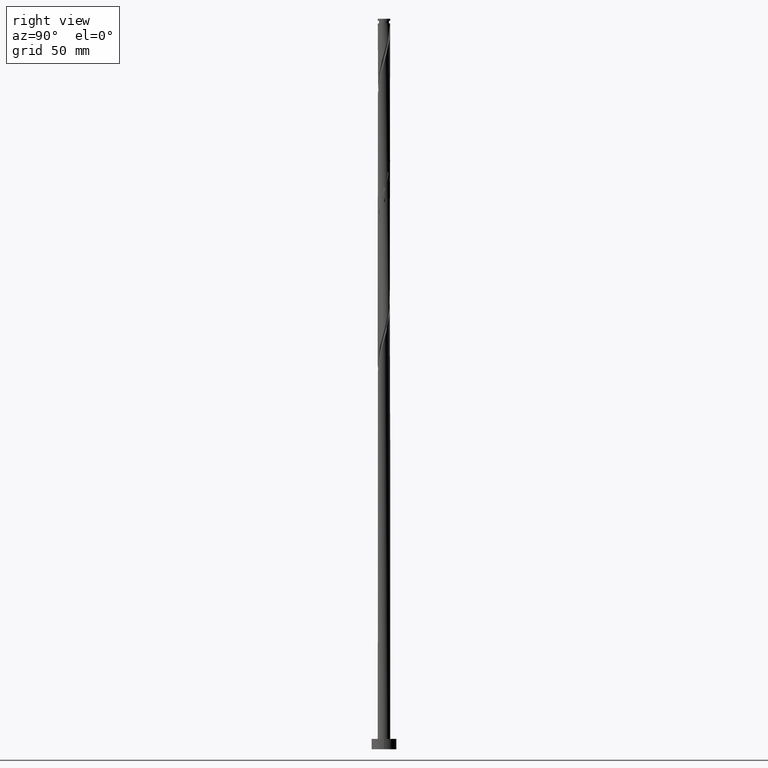
[diagram: clean part render]
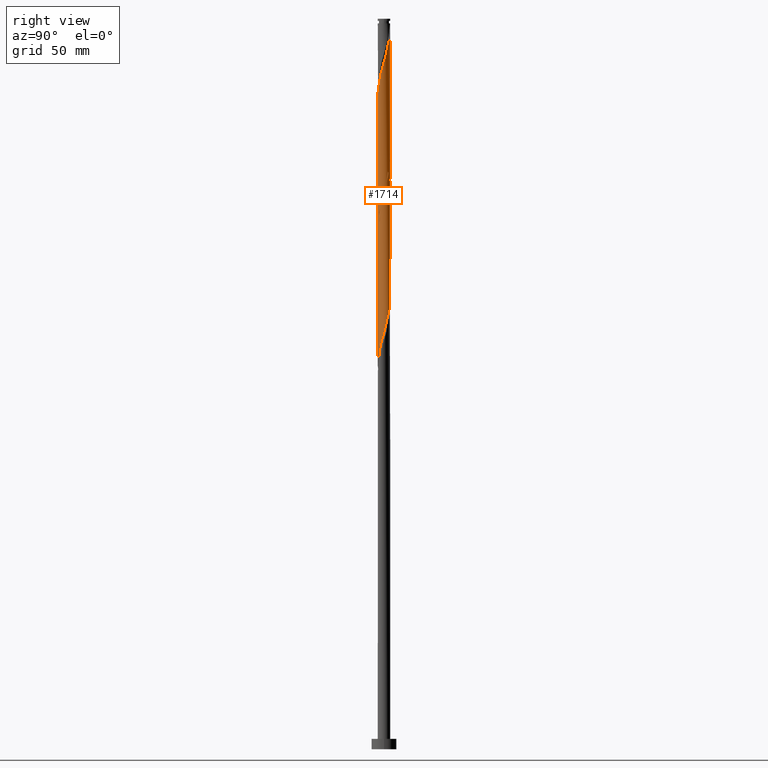
[diagram: same view with one face highlighted and labeled with its STEP entity id]
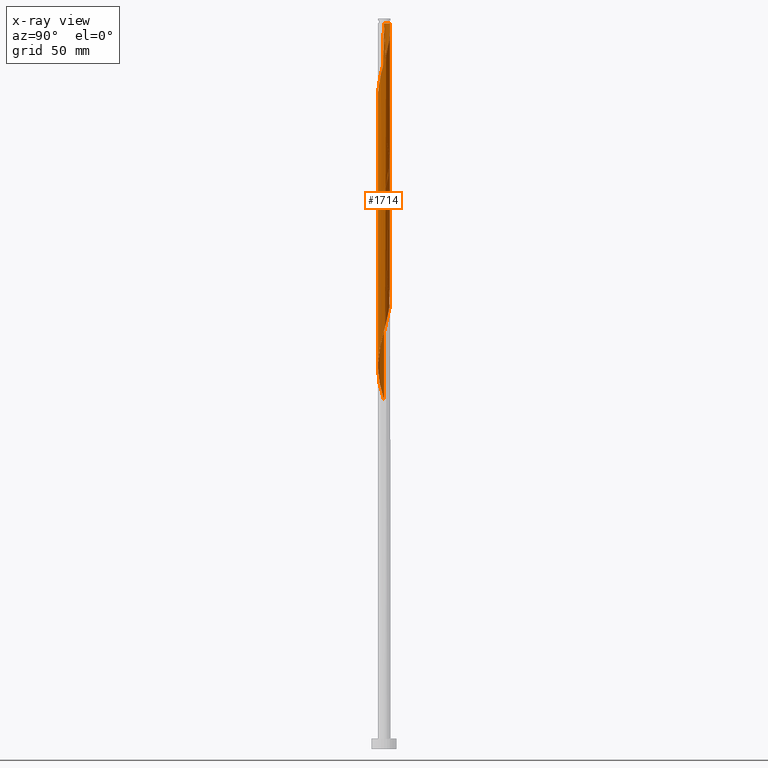
[diagram: x-ray of the same camera — body ghosted, the highlighted face saturated]
A machine part, right view. The second image highlights one B-rep face of the part: STEP entity #1714.
The next image is the same camera in x-ray: the body ghosted, the highlighted face saturated — about 0% of this face is hidden behind the body in this view.
In plain terms, the highlighted cylindrical surface (bore or boss wall) has radius 3 mm, axis along (-0, -0, -1).
Its self-contained STEP definition (entity closure, byte-faithful):
#13 = CARTESIAN_POINT ( 'NONE',  ( -0.9582386936374932551, -2.860279830445438431, 309.8706322492016625 ) ) ;
#22 = CARTESIAN_POINT ( 'NONE',  ( -0.6504259784947287182, -2.928642355512055317, 310.9817433603126346 ) ) ;
#35 = CARTESIAN_POINT ( 'NONE',  ( 2.456461689585825781, 1.750776419202128231, 336.5372989158683481 ) ) ;
#45 = CARTESIAN_POINT ( 'NONE',  ( 0.5969924622639743994, -2.940000000000003499, 315.4261878047571486 ) ) ;
#47 = CARTESIAN_POINT ( 'NONE',  ( -2.211065689225170772, -2.027606598413810080, 242.0928544714238626 ) ) ;
#53 = CARTESIAN_POINT ( 'NONE',  ( 2.744447700168709314, -1.251970017003503299, 325.4261878047573191 ) ) ;
#63 = CARTESIAN_POINT ( 'NONE',  ( -2.766788993523057183, 1.201790650553046902, 229.8706322492016056 ) ) ;
#75 = CARTESIAN_POINT ( 'NONE',  ( -1.484415317302709258, -2.626010904050884331, 178.7595211380904914 ) ) ;
#87 = CARTESIAN_POINT ( 'NONE',  ( 2.956194341916737578, -0.6002808636434366907, 198.7595211380904914 ) ) ;
#95 = CARTESIAN_POINT ( 'NONE',  ( 2.584311715169901102, 1.523592123514560415, 206.5372989158682913 ) ) ;
#103 = DIRECTION ( 'NONE',  ( -0.000000000000000000, -0.000000000000000000, -1.000000000000000000 ) ) ;
#104 = CARTESIAN_POINT ( 'NONE',  ( 2.861491667719897158, -0.9010357570982435726, 197.6484100269793771 ) ) ;
#110 = CARTESIAN_POINT ( 'NONE',  ( -1.245111594254570964, 2.729413328510879921, 222.0928544714238342 ) ) ;
#118 = CARTESIAN_POINT ( 'NONE',  ( -1.245111594254570964, 2.729413328510879921, 288.7595211380905766 ) ) ;
#133 = CARTESIAN_POINT ( 'NONE',  ( -3.000000000000000444, -3.886588009372903973E-15, 167.5516310482786935 ) ) ;
#135 = VERTEX_POINT ( 'NONE', #1149 ) ;
#153 = DIRECTION ( 'NONE',  ( -1.000000000000000000, 0.000000000000000000, 0.000000000000000000 ) ) ;
#162 = CARTESIAN_POINT ( 'NONE',  ( 2.211065689225171216, 2.027606598413810080, 275.4261878047572054 ) ) ;
#170 = CARTESIAN_POINT ( 'NONE',  ( 0.5969924622639751766, 2.939999999999999947, 282.0928544714238910 ) ) ;
#178 = CARTESIAN_POINT ( 'NONE',  ( 2.744447700168706206, 1.251970017003499747, 272.0928544714237205 ) ) ;
#182 = CARTESIAN_POINT ( 'NONE',  ( 2.247618455994262021, -1.987010638188425604, 259.8706322492016625 ) ) ;
#187 = CARTESIAN_POINT ( 'NONE',  ( 2.844610918258237309, 0.9529893618115730103, 270.9817433603126915 ) ) ;
#190 = CARTESIAN_POINT ( 'NONE',  ( -3.016399812174360040, -0.02746407747455771250, 234.3150766936460343 ) ) ;
#197 = CARTESIAN_POINT ( 'NONE',  ( 1.997955648279248431, 2.259998966801997078, 276.5372989158683481 ) ) ;
#206 = DIRECTION ( 'NONE',  ( -0.000000000000000000, -0.000000000000000000, -1.000000000000000000 ) ) ;
#210 = CARTESIAN_POINT ( 'NONE',  ( 1.245111594254570742, -2.729413328510879921, 188.7595211380905482 ) ) ;
#221 = CARTESIAN_POINT ( 'NONE',  ( 0.9059989139450655982, 2.877253563794370805, 214.3150766936460627 ) ) ;
#231 = CARTESIAN_POINT ( 'NONE',  ( -1.997955648279248209, -2.259998966801997522, 176.5372989158682913 ) ) ;
#240 = CARTESIAN_POINT ( 'NONE',  ( 1.997955648279248431, 2.259998966801997078, 209.8706322492015488 ) ) ;
#251 = CARTESIAN_POINT ( 'NONE',  ( 2.424175730171095111, 1.795214230025620639, 207.6484100269794340 ) ) ;
#260 = CARTESIAN_POINT ( 'NONE',  ( -2.247618455994262021, 1.987010638188424938, 293.2039655825349769 ) ) ;
#277 = AXIS2_PLACEMENT_3D ( 'NONE', #1459, #1779, #153 ) ;
#308 = CARTESIAN_POINT ( 'NONE',  ( 1.484415317302709481, 2.626010904050884331, 278.7595211380904630 ) ) ;
#318 = CARTESIAN_POINT ( 'NONE',  ( -0.02731362638454053193, -2.999875658392152200, 313.2039655825348632 ) ) ;
#320 = CARTESIAN_POINT ( 'NONE',  ( 1.531984494871650782, -2.598546826576326740, 256.5372989158682913 ) ) ;
#326 = CARTESIAN_POINT ( 'NONE',  ( 0.9582386936374936992, 2.860279830445437543, 343.2039655825349769 ) ) ;
#328 = CARTESIAN_POINT ( 'NONE',  ( -0.5969924622639747325, -2.939999999999999947, 248.7595211380904914 ) ) ;
#334 = CARTESIAN_POINT ( 'NONE',  ( -2.456461689585824892, -1.750776419202128897, 303.2039655825349200 ) ) ;
#338 = CARTESIAN_POINT ( 'NONE',  ( -1.997955648279248209, -2.259998966801997522, 243.2039655825348916 ) ) ;
#343 = CARTESIAN_POINT ( 'NONE',  ( -1.245111594254573184, -2.729413328510883030, 308.7595211380904061 ) ) ;
#345 = CARTESIAN_POINT ( 'NONE',  ( -2.956194341916737578, 0.6002808636434364686, 232.0928544714238058 ) ) ;
#352 = CARTESIAN_POINT ( 'NONE',  ( -2.424175730171093779, -1.795214230025622415, 174.3150766936460627 ) ) ;
#360 = CARTESIAN_POINT ( 'NONE',  ( -3.000000000000000444, 0.000000000000000000, 351.0000000000000000 ) ) ;
#371 = CARTESIAN_POINT ( 'NONE',  ( 0.3426132633519650139, 2.997004880578674424, 345.4261878047571486 ) ) ;
#373 = CARTESIAN_POINT ( 'NONE',  ( 0.9582386936374897024, -2.860279830445433991, 187.6484100269793487 ) ) ;
#384 = CARTESIAN_POINT ( 'NONE',  ( -0.6504259784947266088, 2.928642355512052653, 219.8706322492016625 ) ) ;
#392 = CARTESIAN_POINT ( 'NONE',  ( -2.584311715169901102, -1.523592123514561303, 173.2039655825349485 ) ) ;
#402 = CARTESIAN_POINT ( 'NONE',  ( -2.861491667719897158, 0.9010357570982420183, 297.6484100269793771 ) ) ;
#411 = CARTESIAN_POINT ( 'NONE',  ( -0.9582386936374900355, 2.860279830445433547, 287.6484100269793203 ) ) ;
#429 = CARTESIAN_POINT ( 'NONE',  ( 3.000000000000000444, 2.630921114037042974E-15, 267.5516310482786935 ) ) ;
#438 = LINE ( 'NONE', #1211, #1627 ) ;
#445 =( BOUNDED_CURVE ( )  B_SPLINE_CURVE ( 2, ( #569, #542, #1128, #1156, #402, #1004, #987, #1566, #260, #841, #1422, #1135, #118, #411, #1578, #996, #1062, #1472, #170, #1646, #900, #308, #587, #197, #162, #1352, #743, #178, #187, #1510, #627, #618, #925 ),
 .UNSPECIFIED., .F., .T. ) 
 B_SPLINE_CURVE_WITH_KNOTS ( ( 3, 2, 2, 2, 2, 2, 2, 2, 2, 2, 2, 2, 2, 2, 2, 2, 3 ),
 ( 0.4295286012773113504, 0.4333333333333333481, 0.4416666666666666519, 0.4500000000000000111, 0.4583333333333333148, 0.4666666666666666741, 0.4749999999999999778, 0.4833333333333333370, 0.4916666666666666408, 0.5000000000000000000, 0.5083333333333333037, 0.5166666666666667185, 0.5250000000000000222, 0.5333333333333333259, 0.5416666666666666297, 0.5500000000000000444, 0.5545286012773115170 ),
 .UNSPECIFIED. ) 
 CURVE ( )  GEOMETRIC_REPRESENTATION_ITEM ( )  RATIONAL_B_SPLINE_CURVE ( ( 0.9066196499552384713, 0.9068171577856511956, 0.9090909090909501389, 0.9041108139711984126, 0.9090909090909501389, 0.9041108139711984126, 0.9090909090909501389, 0.9041108139711984126, 0.9090909090909501389, 0.9041108139711984126, 0.9090909090909501389, 0.9041108139711984126, 0.9090909090909501389, 0.9041108139711984126, 0.9090909090909501389, 0.9041108139711984126, 0.9090909090909501389, 0.9041108139711984126, 0.9090909090909501389, 0.9041108139711984126, 0.9090909090909501389, 0.9041108139711984126, 0.9090909090909501389, 0.9041108139711984126, 0.9090909090909501389, 0.9041108139711984126, 0.9090909090909501389, 0.9041108139711984126, 0.9090909090909501389, 0.9041108139711984126, 0.9090909090909501389, 0.9063845652764972449, 0.9066196499552384713 ) ) 
 REPRESENTATION_ITEM ( '' )  );
#446 = CARTESIAN_POINT ( 'NONE',  ( 1.997955648279249319, -2.259998966802001519, 320.9817433603127483 ) ) ;
#457 = CARTESIAN_POINT ( 'NONE',  ( 2.584311715169902435, -1.523592123514564856, 324.3150766936460627 ) ) ;
#466 = EDGE_CURVE ( 'NONE', #135, #1829, #438, .T. ) ;
#467 = CARTESIAN_POINT ( 'NONE',  ( -2.986297077045553916, -0.2864083930844382730, 297.6484100269793771 ) ) ;
#470 = CARTESIAN_POINT ( 'NONE',  ( 1.785379858637177186, -2.410895841875524859, 257.6484100269794340 ) ) ;
#477 = CARTESIAN_POINT ( 'NONE',  ( 2.247618455994266462, 1.987010638188425604, 337.6484100269793771 ) ) ;
#480 = CARTESIAN_POINT ( 'NONE',  ( -2.980586974261063560, -0.3407363920471035978, 235.4261878047571770 ) ) ;
#494 = CARTESIAN_POINT ( 'NONE',  ( -3.000000000000000444, -1.943294004686451986E-15, 300.8849643816120079 ) ) ;
#498 = CYLINDRICAL_SURFACE ( 'NONE', #277, 3.000000000000000444 ) ;
#504 = CARTESIAN_POINT ( 'NONE',  ( 1.531984494871650782, -2.598546826576326740, 189.8706322492016056 ) ) ;
#512 = ORIENTED_EDGE ( 'NONE', *, *, #466, .T. ) ;
#515 = CARTESIAN_POINT ( 'NONE',  ( -2.844610918258236421, -0.9529893618115747866, 170.9817433603127199 ) ) ;
#523 = CARTESIAN_POINT ( 'NONE',  ( -2.611625341554438595, 1.476283534877586678, 228.7595211380904630 ) ) ;
#534 = CARTESIAN_POINT ( 'NONE',  ( 2.980586974261063560, 0.3407363920471032648, 202.0928544714238626 ) ) ;
#539 = VERTEX_POINT ( 'NONE', #1075 ) ;
#542 = CARTESIAN_POINT ( 'NONE',  ( -3.000000000000000444, 0.1435319978602463409, 300.3764158560479700 ) ) ;
#543 = VERTEX_POINT ( 'NONE', #494 ) ;
#569 = CARTESIAN_POINT ( 'NONE',  ( -3.000000000000000444, -1.943294004686451986E-15, 300.8849643816120079 ) ) ;
#586 = DIRECTION ( 'NONE',  ( -0.000000000000000000, -0.000000000000000000, -1.000000000000000000 ) ) ;
#587 = CARTESIAN_POINT ( 'NONE',  ( 1.741185482790979844, 2.443004935426440039, 277.6484100269793771 ) ) ;
#597 = CARTESIAN_POINT ( 'NONE',  ( 3.016399812174364481, -0.02746407747456011336, 329.8706322492016625 ) ) ;
#608 = CARTESIAN_POINT ( 'NONE',  ( 1.785379858637181627, 2.410895841875526191, 339.8706322492015488 ) ) ;
#610 = CARTESIAN_POINT ( 'NONE',  ( 2.999999999999999556, -0.1435319978602529745, 267.0430825227145988 ) ) ;
#618 = CARTESIAN_POINT ( 'NONE',  ( 3.000000000000000888, 0.1709212123392938876, 268.1572223576632155 ) ) ;
#620 = CARTESIAN_POINT ( 'NONE',  ( -0.9059989139450639328, -2.877253563794371249, 247.6484100269794340 ) ) ;
#627 = CARTESIAN_POINT ( 'NONE',  ( 2.980586974261063560, 0.3407363920471032648, 268.7595211380904630 ) ) ;
#629 = CARTESIAN_POINT ( 'NONE',  ( 2.038775222402703591, -2.223244857174722089, 258.7595211380904630 ) ) ;
#631 = EDGE_CURVE ( 'NONE', #1081, #1829, #1238, .T. ) ;
#638 = CARTESIAN_POINT ( 'NONE',  ( -0.5969924622640608858, 2.940000000000868141, 348.7595211380905198 ) ) ;
#651 = CARTESIAN_POINT ( 'NONE',  ( -2.744447700168706206, -1.251970017003500413, 172.0928544714237773 ) ) ;
#659 = ORIENTED_EDGE ( 'NONE', *, *, #1285, .F. ) ;
#662 = CARTESIAN_POINT ( 'NONE',  ( 2.456461689585818675, -1.750776419202128897, 194.3150766936460343 ) ) ;
#671 = VECTOR ( 'NONE', #103, 1000.000000000000000 ) ;
#679 = CARTESIAN_POINT ( 'NONE',  ( 1.484415317302709481, 2.626010904050884331, 212.0928544714238342 ) ) ;
#684 = CARTESIAN_POINT ( 'NONE',  ( 3.000000000000000444, 3.673940397442060361E-16, 348.7595211380905198 ) ) ;
#688 = ORIENTED_EDGE ( 'NONE', *, *, #1391, .F. ) ;
#690 = CARTESIAN_POINT ( 'NONE',  ( 1.785379858637177186, -2.410895841875524859, 190.9817433603126915 ) ) ;
#743 = CARTESIAN_POINT ( 'NONE',  ( 2.584311715169901102, 1.523592123514560415, 273.2039655825350337 ) ) ;
#753 = CARTESIAN_POINT ( 'NONE',  ( 1.195207115623886374, -2.751632233922632675, 317.6484100269793203 ) ) ;
#756 = CARTESIAN_POINT ( 'NONE',  ( -1.741185482790978734, -2.443004935426440039, 244.3150766936460343 ) ) ;
#760 = VECTOR ( 'NONE', #586, 1000.000000000000000 ) ;
#764 = CARTESIAN_POINT ( 'NONE',  ( 2.424175730171096443, -1.795214230025626634, 323.2039655825349200 ) ) ;
#767 = CARTESIAN_POINT ( 'NONE',  ( 2.611625341554438595, -1.476283534877586900, 262.0928544714238342 ) ) ;
#773 = CARTESIAN_POINT ( 'NONE',  ( 1.484415317302710591, -2.626010904050888772, 318.7595211380904630 ) ) ;
#776 = CARTESIAN_POINT ( 'NONE',  ( -2.986297077045549475, 0.2864083930844394943, 233.2039655825349485 ) ) ;
#782 = CARTESIAN_POINT ( 'NONE',  ( -2.861491667719901599, -0.9010357570982417963, 299.8706322492015488 ) ) ;
#785 = CARTESIAN_POINT ( 'NONE',  ( -2.584311715169901102, -1.523592123514561303, 239.8706322492016341 ) ) ;
#798 = CARTESIAN_POINT ( 'NONE',  ( 2.211065689225171216, 2.027606598413810080, 208.7595211380904914 ) ) ;
#804 = LINE ( 'NONE', #1181, #760 ) ;
#809 = CARTESIAN_POINT ( 'NONE',  ( -2.980586974261063560, -0.3407363920471035978, 168.7595211380905198 ) ) ;
#825 = CARTESIAN_POINT ( 'NONE',  ( 0.02731362638454095174, 2.999875658392152200, 346.5372989158682344 ) ) ;
#826 = CARTESIAN_POINT ( 'NONE',  ( 0.6504259784947253875, -2.928642355512052653, 186.5372989158683197 ) ) ;
#835 = CARTESIAN_POINT ( 'NONE',  ( -0.9059989139450639328, -2.877253563794371249, 180.9817433603127199 ) ) ;
#841 = CARTESIAN_POINT ( 'NONE',  ( -2.038775222402704035, 2.223244857174722089, 292.0928544714238342 ) ) ;
#878 = FACE_OUTER_BOUND ( 'NONE', #1360, .T. ) ;
#888 = VERTEX_POINT ( 'NONE', #1879 ) ;
#889 = CARTESIAN_POINT ( 'NONE',  ( 2.980586974261067557, -0.3407363920471052632, 328.7595211380904061 ) ) ;
#891 = CARTESIAN_POINT ( 'NONE',  ( 0.6504259784947253875, -2.928642355512052653, 253.2039655825350053 ) ) ;
#900 = CARTESIAN_POINT ( 'NONE',  ( 1.195207115623887928, 2.751632233922627346, 279.8706322492015488 ) ) ;
#903 = CARTESIAN_POINT ( 'NONE',  ( 0.9582386936374897024, -2.860279830445433991, 254.3150766936460627 ) ) ;
#907 = CARTESIAN_POINT ( 'NONE',  ( 0.6504259784947304945, 2.928642355512055317, 344.3150766936459490 ) ) ;
#909 = CARTESIAN_POINT ( 'NONE',  ( -2.424175730171093779, -1.795214230025622415, 240.9817433603126915 ) ) ;
#916 = CARTESIAN_POINT ( 'NONE',  ( -2.247618455994265574, -1.987010638188426048, 304.3150766936460627 ) ) ;
#925 = CARTESIAN_POINT ( 'NONE',  ( 3.000000000000000444, 2.630921114037042580E-15, 267.5516310482786935 ) ) ;
#927 = CARTESIAN_POINT ( 'NONE',  ( 2.861491667719897158, -0.9010357570982435726, 264.3150766936461196 ) ) ;
#937 = CARTESIAN_POINT ( 'NONE',  ( 2.986297077045549475, -0.2864083930844405490, 199.8706322492016341 ) ) ;
#959 = CARTESIAN_POINT ( 'NONE',  ( 0.5969924622639751766, 2.939999999999999947, 215.4261878047572054 ) ) ;
#965 = ORIENTED_EDGE ( 'NONE', *, *, #1163, .F. ) ;
#968 = CARTESIAN_POINT ( 'NONE',  ( 3.016399812174360040, 0.02746407747455591186, 200.9817433603127199 ) ) ;
#979 = CARTESIAN_POINT ( 'NONE',  ( -0.02731362638453866884, 2.999875658392149536, 217.6484100269793487 ) ) ;
#987 = CARTESIAN_POINT ( 'NONE',  ( -2.611625341554438595, 1.476283534877586678, 295.4261878047572054 ) ) ;
#996 = CARTESIAN_POINT ( 'NONE',  ( -0.3426132633519632931, 2.997004880578669983, 285.4261878047572054 ) ) ;
#1004 = CARTESIAN_POINT ( 'NONE',  ( -2.766788993523057183, 1.201790650553046902, 296.5372989158682913 ) ) ;
#1033 = CARTESIAN_POINT ( 'NONE',  ( -0.3426132633519646253, -2.997004880578674424, 312.0928544714238342 ) ) ;
#1044 = CARTESIAN_POINT ( 'NONE',  ( 2.944774136347771076, -0.6540087066196532684, 327.6484100269793771 ) ) ;
#1053 = CARTESIAN_POINT ( 'NONE',  ( 1.245111594254573628, 2.729413328510883030, 342.0928544714238342 ) ) ;
#1062 = CARTESIAN_POINT ( 'NONE',  ( -0.02731362638453866884, 2.999875658392149536, 284.3150766936461196 ) ) ;
#1073 = CARTESIAN_POINT ( 'NONE',  ( -2.956194341916742019, -0.6002808636434363576, 298.7595211380905766 ) ) ;
#1075 = CARTESIAN_POINT ( 'NONE',  ( -0.5969924622640609968, 2.940000000000868585, 348.7595211380905198 ) ) ;
#1081 = VERTEX_POINT ( 'NONE', #429 ) ;
#1083 = CARTESIAN_POINT ( 'NONE',  ( 1.195207115623887928, 2.751632233922627346, 213.2039655825349485 ) ) ;
#1092 = CARTESIAN_POINT ( 'NONE',  ( -1.741185482790978734, -2.443004935426440039, 177.6484100269794624 ) ) ;
#1110 = CARTESIAN_POINT ( 'NONE',  ( -0.2879860105828832562, 3.002746436205632641, 347.6484100269794340 ) ) ;
#1112 = CARTESIAN_POINT ( 'NONE',  ( 2.744447700168706206, 1.251970017003499747, 205.4261878047571201 ) ) ;
#1120 = CARTESIAN_POINT ( 'NONE',  ( 0.3426132633519629600, -2.997004880578669983, 185.4261878047572338 ) ) ;
#1128 = CARTESIAN_POINT ( 'NONE',  ( -2.986297077045549475, 0.2864083930844394943, 299.8706322492016625 ) ) ;
#1135 = CARTESIAN_POINT ( 'NONE',  ( -1.531984494871651226, 2.598546826576326296, 289.8706322492014920 ) ) ;
#1149 = CARTESIAN_POINT ( 'NONE',  ( -3.000000000000004441, -9.118533406605595878E-16, 296.6340778945690317 ) ) ;
#1156 = CARTESIAN_POINT ( 'NONE',  ( -2.956194341916737578, 0.6002808636434364686, 298.7595211380905766 ) ) ;
#1163 = EDGE_CURVE ( 'NONE', #543, #1081, #445, .T. ) ;
#1174 = CARTESIAN_POINT ( 'NONE',  ( 1.741185482790979178, -2.443004935426446256, 319.8706322492014920 ) ) ;
#1181 = CARTESIAN_POINT ( 'NONE',  ( 3.000000000000000444, 3.673940397442060361E-16, 351.0000000000000000 ) ) ;
#1182 = CARTESIAN_POINT ( 'NONE',  ( 2.986297077045553916, 0.2864083930844367187, 330.9817433603127483 ) ) ;
#1184 = CARTESIAN_POINT ( 'NONE',  ( 3.000000000000000444, 2.630921114037042580E-15, 267.5516310482786935 ) ) ;
#1192 = CARTESIAN_POINT ( 'NONE',  ( 1.531984494871656111, 2.598546826576328961, 340.9817433603127483 ) ) ;
#1200 = ORIENTED_EDGE ( 'NONE', *, *, #1289, .T. ) ;
#1204 = CARTESIAN_POINT ( 'NONE',  ( -2.744447700168706206, -1.251970017003500413, 238.7595211380905482 ) ) ;
#1209 = CARTESIAN_POINT ( 'NONE',  ( 0.9059989139450630447, -2.877253563794377023, 316.5372989158682913 ) ) ;
#1211 = CARTESIAN_POINT ( 'NONE',  ( -3.000000000000000444, 0.000000000000000000, 351.0000000000000000 ) ) ;
#1231 = CARTESIAN_POINT ( 'NONE',  ( -3.000000000000000444, -3.886588009372903973E-15, 167.5516310482787219 ) ) ;
#1238 =( BOUNDED_CURVE ( )  B_SPLINE_CURVE ( 2, ( #1184, #610, #1346, #1649, #927, #1783, #767, #1634, #182, #629, #470, #320, #1624, #903, #891, #1658, #1641, #1484, #328, #620, #1494, #1802, #756, #338, #47, #909, #785, #1204, #1791, #1504, #480, #190, #776, #345, #1512, #63, #523, #1407, #1822, #1258, #1859, #1697, #110, #1687, #384, #1532, #979, #1376, #959, #221, #1083, #679, #1558, #240, #798, #251, #95, #1112, #1851, #1385, #534, #968, #937, #87, #104, #1548, #1397, #662, #1669, #1241, #690, #504, #210, #373, #826, #1120, #1833, #1521, #1541, #835, #1268, #75, #1092, #231, #1707, #352, #392, #651, #515, #1677, #809, #1416, #1231 ),
 .UNSPECIFIED., .F., .T. ) 
 B_SPLINE_CURVE_WITH_KNOTS ( ( 3, 2, 2, 2, 2, 2, 2, 2, 2, 2, 2, 2, 2, 2, 2, 2, 2, 2, 2, 2, 2, 2, 2, 2, 2, 2, 2, 2, 2, 2, 2, 2, 2, 2, 2, 2, 2, 2, 2, 2, 2, 2, 2, 2, 2, 2, 3 ),
 ( 0.5545286012773115170, 0.5583333333333333481, 0.5666666666666666519, 0.5749999999999999556, 0.5833333333333333703, 0.5916666666666666741, 0.5999999999999999778, 0.6083333333333332815, 0.6166666666666666963, 0.6250000000000000000, 0.6333333333333333037, 0.6416666666666667185, 0.6500000000000000222, 0.6583333333333333259, 0.6666666666666666297, 0.6750000000000000444, 0.6833333333333333481, 0.6916666666666666519, 0.6999999999999999556, 0.7083333333333333703, 0.7166666666666666741, 0.7249999999999999778, 0.7333333333333332815, 0.7416666666666666963, 0.7500000000000000000, 0.7583333333333333037, 0.7666666666666667185, 0.7750000000000000222, 0.7833333333333333259, 0.7916666666666666297, 0.8000000000000000444, 0.8083333333333333481, 0.8166666666666666519, 0.8249999999999999556, 0.8333333333333333703, 0.8416666666666666741, 0.8499999999999999778, 0.8583333333333332815, 0.8666666666666666963, 0.8750000000000000000, 0.8833333333333333037, 0.8916666666666667185, 0.9000000000000001332, 0.9083333333333334370, 0.9166666666666667407, 0.9250000000000000444, 0.9295286012773114059 ),
 .UNSPECIFIED. ) 
 CURVE ( )  GEOMETRIC_REPRESENTATION_ITEM ( )  RATIONAL_B_SPLINE_CURVE ( ( 0.9066196499552384713, 0.9068171577856511956, 0.9090909090909501389, 0.9041108139711984126, 0.9090909090909501389, 0.9041108139711984126, 0.9090909090909501389, 0.9041108139711984126, 0.9090909090909501389, 0.9041108139711984126, 0.9090909090909501389, 0.9041108139711984126, 0.9090909090909501389, 0.9041108139711984126, 0.9090909090909501389, 0.9041108139711984126, 0.9090909090909501389, 0.9041108139711984126, 0.9090909090909501389, 0.9041108139711984126, 0.9090909090909501389, 0.9041108139711984126, 0.9090909090909501389, 0.9041108139711984126, 0.9090909090909501389, 0.9041108139711984126, 0.9090909090909501389, 0.9041108139711984126, 0.9090909090909501389, 0.9041108139711984126, 0.9090909090909501389, 0.9041108139711984126, 0.9090909090909501389, 0.9041108139711984126, 0.9090909090909501389, 0.9041108139711984126, 0.9090909090909501389, 0.9041108139711984126, 0.9090909090909501389, 0.9041108139711984126, 0.9090909090909501389, 0.9041108139711984126, 0.9090909090909501389, 0.9041108139711984126, 0.9090909090909501389, 0.9041108139711984126, 0.9090909090909501389, 0.9041108139711984126, 0.9090909090909501389, 0.9041108139711984126, 0.9090909090909501389, 0.9041108139711984126, 0.9090909090909501389, 0.9041108139711984126, 0.9090909090909501389, 0.9041108139711984126, 0.9090909090909501389, 0.9041108139711984126, 0.9090909090909501389, 0.9041108139711984126, 0.9090909090909501389, 0.9041108139711984126, 0.9090909090909501389, 0.9041108139711984126, 0.9090909090909501389, 0.9041108139711984126, 0.9090909090909501389, 0.9041108139711984126, 0.9090909090909501389, 0.9041108139711984126, 0.9090909090909501389, 0.9041108139711984126, 0.9090909090909501389, 0.9041108139711984126, 0.9090909090909501389, 0.9041108139711984126, 0.9090909090909501389, 0.9041108139711984126, 0.9090909090909501389, 0.9041108139711984126, 0.9090909090909501389, 0.9041108139711984126, 0.9090909090909501389, 0.9041108139711984126, 0.9090909090909501389, 0.9041108139711984126, 0.9090909090909501389, 0.9041108139711984126, 0.9090909090909501389, 0.9041108139711984126, 0.9090909090909501389, 0.9063845652764973559, 0.9066196499552384713 ) ) 
 REPRESENTATION_ITEM ( '' )  );
#1241 = CARTESIAN_POINT ( 'NONE',  ( 2.038775222402703591, -2.223244857174722089, 192.0928544714238342 ) ) ;
#1258 = CARTESIAN_POINT ( 'NONE',  ( -2.038775222402704035, 2.223244857174722089, 225.4261878047571201 ) ) ;
#1268 = CARTESIAN_POINT ( 'NONE',  ( -1.195207115623887484, -2.751632233922627346, 179.8706322492016056 ) ) ;
#1285 = EDGE_CURVE ( 'NONE', #135, #539, #1893, .T. ) ;
#1289 = EDGE_CURVE ( 'NONE', #888, #539, #1772, .T. ) ;
#1324 = CARTESIAN_POINT ( 'NONE',  ( -2.766788993523062512, -1.201790650553047346, 300.9817433603126915 ) ) ;
#1333 = CARTESIAN_POINT ( 'NONE',  ( 2.766788993523062512, 1.201790650553045570, 334.3150766936460627 ) ) ;
#1344 = CARTESIAN_POINT ( 'NONE',  ( 2.861491667719901599, 0.9010357570982406861, 333.2039655825349769 ) ) ;
#1346 = CARTESIAN_POINT ( 'NONE',  ( 2.986297077045549475, -0.2864083930844405490, 266.5372989158683481 ) ) ;
#1352 = CARTESIAN_POINT ( 'NONE',  ( 2.424175730171095111, 1.795214230025620639, 274.3150766936460059 ) ) ;
#1354 = DIRECTION ( 'NONE',  ( -0.000000000000000000, -0.000000000000000000, -1.000000000000000000 ) ) ;
#1360 = EDGE_LOOP ( 'NONE', ( #688, #1200, #659, #512, #1876, #1632, #1593, #965 ) ) ;
#1374 = LINE ( 'NONE', #360, #671 ) ;
#1376 = CARTESIAN_POINT ( 'NONE',  ( 0.2879860105828855876, 3.002746436205627312, 216.5372989158682913 ) ) ;
#1385 = CARTESIAN_POINT ( 'NONE',  ( 2.944774136347767968, 0.6540087066196480503, 203.2039655825349200 ) ) ;
#1391 = EDGE_CURVE ( 'NONE', #888, #543, #1374, .T. ) ;
#1397 = CARTESIAN_POINT ( 'NONE',  ( 2.611625341554438595, -1.476283534877586900, 195.4261878047571486 ) ) ;
#1405 = CARTESIAN_POINT ( 'NONE',  ( 0.000000000000000000, 0.000000000000000000, 348.7595211380905198 ) ) ;
#1407 = CARTESIAN_POINT ( 'NONE',  ( -2.456461689585819119, 1.750776419202127343, 227.6484100269793487 ) ) ;
#1416 = CARTESIAN_POINT ( 'NONE',  ( -3.000000000000000000, -0.1709212123392992166, 168.1572223576632155 ) ) ;
#1422 = CARTESIAN_POINT ( 'NONE',  ( -1.785379858637177852, 2.410895841875524415, 290.9817433603126915 ) ) ;
#1459 = CARTESIAN_POINT ( 'NONE',  ( 0.000000000000000000, 0.000000000000000000, 351.0000000000000000 ) ) ;
#1462 = EDGE_CURVE ( 'NONE', #1760, #1081, #804, .T. ) ;
#1472 = CARTESIAN_POINT ( 'NONE',  ( 0.2879860105828855876, 3.002746436205627312, 283.2039655825349769 ) ) ;
#1481 = CARTESIAN_POINT ( 'NONE',  ( -3.000000000000004441, -9.118533406605595878E-16, 296.6340778945690317 ) ) ;
#1484 = CARTESIAN_POINT ( 'NONE',  ( -0.2879860105828869199, -3.002746436205628200, 249.8706322492016341 ) ) ;
#1491 = CARTESIAN_POINT ( 'NONE',  ( 2.211065689225173436, -2.027606598413813188, 322.0928544714239479 ) ) ;
#1494 = CARTESIAN_POINT ( 'NONE',  ( -1.195207115623887484, -2.751632233922627346, 246.5372989158683197 ) ) ;
#1501 = CARTESIAN_POINT ( 'NONE',  ( 2.611625341554443036, 1.476283534877588011, 335.4261878047571486 ) ) ;
#1504 = CARTESIAN_POINT ( 'NONE',  ( -2.944774136347767968, -0.6540087066196490495, 236.5372989158682913 ) ) ;
#1510 = CARTESIAN_POINT ( 'NONE',  ( 2.944774136347767968, 0.6540087066196480503, 269.8706322492016056 ) ) ;
#1512 = CARTESIAN_POINT ( 'NONE',  ( -2.861491667719897158, 0.9010357570982420183, 230.9817433603128052 ) ) ;
#1521 = CARTESIAN_POINT ( 'NONE',  ( -0.2879860105828869199, -3.002746436205628200, 183.2039655825349200 ) ) ;
#1527 = AXIS2_PLACEMENT_3D ( 'NONE', #1405, #206, #1538 ) ;
#1532 = CARTESIAN_POINT ( 'NONE',  ( -0.3426132633519632931, 2.997004880578669983, 218.7595211380904914 ) ) ;
#1538 = DIRECTION ( 'NONE',  ( -1.000000000000000000, 0.000000000000000000, 0.000000000000000000 ) ) ;
#1541 = CARTESIAN_POINT ( 'NONE',  ( -0.5969924622639747325, -2.939999999999999947, 182.0928544714238626 ) ) ;
#1548 = CARTESIAN_POINT ( 'NONE',  ( 2.766788993523056295, -1.201790650553047790, 196.5372989158682344 ) ) ;
#1558 = CARTESIAN_POINT ( 'NONE',  ( 1.741185482790979844, 2.443004935426440039, 210.9817433603126915 ) ) ;
#1566 = CARTESIAN_POINT ( 'NONE',  ( -2.456461689585819119, 1.750776419202127343, 294.3150766936460059 ) ) ;
#1578 = CARTESIAN_POINT ( 'NONE',  ( -0.6504259784947266088, 2.928642355512052653, 286.5372989158683481 ) ) ;
#1593 = ORIENTED_EDGE ( 'NONE', *, *, #1462, .T. ) ;
#1622 = CARTESIAN_POINT ( 'NONE',  ( 2.844610918258240417, -0.9529893618115785614, 326.5372989158682344 ) ) ;
#1624 = CARTESIAN_POINT ( 'NONE',  ( 1.245111594254570742, -2.729413328510879921, 255.4261878047571201 ) ) ;
#1627 = VECTOR ( 'NONE', #1354, 1000.000000000000000 ) ;
#1631 = CARTESIAN_POINT ( 'NONE',  ( 2.956194341916742019, 0.6002808636434361356, 332.0928544714238910 ) ) ;
#1632 = ORIENTED_EDGE ( 'NONE', *, *, #1462, .F. ) ;
#1634 = CARTESIAN_POINT ( 'NONE',  ( 2.456461689585818675, -1.750776419202128897, 260.9817433603126346 ) ) ;
#1639 = CARTESIAN_POINT ( 'NONE',  ( 0.2879860105828847550, -3.002746436205632641, 314.3150766936460059 ) ) ;
#1641 = CARTESIAN_POINT ( 'NONE',  ( 0.02731362638453793332, -2.999875658392149536, 250.9817433603126915 ) ) ;
#1646 = CARTESIAN_POINT ( 'NONE',  ( 0.9059989139450655982, 2.877253563794370805, 280.9817433603127483 ) ) ;
#1649 = CARTESIAN_POINT ( 'NONE',  ( 2.956194341916737578, -0.6002808636434366907, 265.4261878047570917 ) ) ;
#1656 = CARTESIAN_POINT ( 'NONE',  ( -2.038775222402707588, -2.223244857174724753, 305.4261878047572623 ) ) ;
#1658 = CARTESIAN_POINT ( 'NONE',  ( 0.3426132633519629600, -2.997004880578669983, 252.0928544714238342 ) ) ;
#1669 = CARTESIAN_POINT ( 'NONE',  ( 2.247618455994262021, -1.987010638188425604, 193.2039655825349769 ) ) ;
#1677 = CARTESIAN_POINT ( 'NONE',  ( -2.944774136347767968, -0.6540087066196490495, 169.8706322492016341 ) ) ;
#1687 = CARTESIAN_POINT ( 'NONE',  ( -0.9582386936374900355, 2.860279830445433547, 220.9817433603126915 ) ) ;
#1697 = CARTESIAN_POINT ( 'NONE',  ( -1.531984494871651226, 2.598546826576326296, 223.2039655825349769 ) ) ;
#1707 = CARTESIAN_POINT ( 'NONE',  ( -2.211065689225170772, -2.027606598413810080, 175.4261878047571486 ) ) ;
#1714 = ADVANCED_FACE ( 'NONE', ( #878 ), #498, .T. ) ;
#1760 = VERTEX_POINT ( 'NONE', #684 ) ;
#1761 = CARTESIAN_POINT ( 'NONE',  ( -3.000000000000004441, -0.1435319978602461188, 297.1426264201330127 ) ) ;
#1771 = CARTESIAN_POINT ( 'NONE',  ( -1.785379858637181183, -2.410895841875526191, 306.5372989158682913 ) ) ;
#1772 = CIRCLE ( 'NONE', #1527, 2.999999999999970246 ) ;
#1779 = DIRECTION ( 'NONE',  ( -0.000000000000000000, -0.000000000000000000, -1.000000000000000000 ) ) ;
#1781 = CARTESIAN_POINT ( 'NONE',  ( 2.038775222402708476, 2.223244857174724753, 338.7595211380905766 ) ) ;
#1783 = CARTESIAN_POINT ( 'NONE',  ( 2.766788993523056295, -1.201790650553047790, 263.2039655825349769 ) ) ;
#1789 = CARTESIAN_POINT ( 'NONE',  ( -2.611625341554443036, -1.476283534877588233, 302.0928544714238342 ) ) ;
#1791 = CARTESIAN_POINT ( 'NONE',  ( -2.844610918258236421, -0.9529893618115747866, 237.6484100269794055 ) ) ;
#1799 = CARTESIAN_POINT ( 'NONE',  ( -1.531984494871654778, -2.598546826576329849, 307.6484100269793203 ) ) ;
#1802 = CARTESIAN_POINT ( 'NONE',  ( -1.484415317302709258, -2.626010904050884331, 245.4261878047572054 ) ) ;
#1822 = CARTESIAN_POINT ( 'NONE',  ( -2.247618455994262021, 1.987010638188424938, 226.5372989158683197 ) ) ;
#1829 = VERTEX_POINT ( 'NONE', #133 ) ;
#1833 = CARTESIAN_POINT ( 'NONE',  ( 0.02731362638453793332, -2.999875658392149536, 184.3150766936460343 ) ) ;
#1851 = CARTESIAN_POINT ( 'NONE',  ( 2.844610918258237309, 0.9529893618115730103, 204.3150766936461196 ) ) ;
#1859 = CARTESIAN_POINT ( 'NONE',  ( -1.785379858637177852, 2.410895841875524415, 224.3150766936460911 ) ) ;
#1876 = ORIENTED_EDGE ( 'NONE', *, *, #631, .F. ) ;
#1879 = CARTESIAN_POINT ( 'NONE',  ( -2.999999999999970246, 0.000000000000000000, 348.7595211380905198 ) ) ;
#1893 =( BOUNDED_CURVE ( )  B_SPLINE_CURVE ( 2, ( #1481, #1761, #467, #1073, #782, #1324, #1789, #334, #916, #1656, #1771, #1799, #343, #13, #22, #1033, #318, #1639, #45, #1209, #753, #773, #1174, #446, #1491, #764, #457, #53, #1622, #1044, #889, #597, #1182, #1631, #1344, #1333, #1501, #35, #477, #1781, #608, #1192, #1053, #326, #907, #371, #825, #1110, #638 ),
 .UNSPECIFIED., .F., .T. ) 
 B_SPLINE_CURVE_WITH_KNOTS ( ( 3, 2, 2, 2, 2, 2, 2, 2, 2, 2, 2, 2, 2, 2, 2, 2, 2, 2, 2, 2, 2, 2, 2, 2, 3 ),
 ( 0.5545286012773114059, 0.5583333333333333481, 0.5666666666666666519, 0.5749999999999999556, 0.5833333333333332593, 0.5916666666666666741, 0.5999999999999999778, 0.6083333333333333925, 0.6166666666666666963, 0.6250000000000000000, 0.6333333333333333037, 0.6416666666666666075, 0.6500000000000000222, 0.6583333333333333259, 0.6666666666666667407, 0.6750000000000000444, 0.6833333333333333481, 0.6916666666666666519, 0.6999999999999999556, 0.7083333333333332593, 0.7166666666666666741, 0.7249999999999999778, 0.7333333333333333925, 0.7416666666666666963, 0.7500000000000000000 ),
 .UNSPECIFIED. ) 
 CURVE ( )  GEOMETRIC_REPRESENTATION_ITEM ( )  RATIONAL_B_SPLINE_CURVE ( ( 0.9066196499552447996, 0.9068171577856574128, 0.9090909090909565782, 0.9041108139712045189, 0.9090909090909565782, 0.9041108139712045189, 0.9090909090909565782, 0.9041108139712045189, 0.9090909090909565782, 0.9041108139712045189, 0.9090909090909565782, 0.9041108139712045189, 0.9090909090909565782, 0.9041108139712045189, 0.9090909090909565782, 0.9041108139712045189, 0.9090909090909565782, 0.9041108139712045189, 0.9090909090909565782, 0.9041108139712045189, 0.9090909090909565782, 0.9041108139712045189, 0.9090909090909565782, 0.9041108139712045189, 0.9090909090909565782, 0.9041108139712045189, 0.9090909090909565782, 0.9041108139712045189, 0.9090909090909565782, 0.9041108139712045189, 0.9090909090909565782, 0.9041108139712045189, 0.9090909090909565782, 0.9041108139712045189, 0.9090909090909565782, 0.9041108139712045189, 0.9090909090909565782, 0.9041108139712045189, 0.9090909090909565782, 0.9041108139712045189, 0.9090909090909565782, 0.9041108139712045189, 0.9090909090909565782, 0.9041108139712045189, 0.9090909090909565782, 0.9041108139712045189, 0.9090909090909565782, 0.9041108139712045189, 0.9090909090909565782 ) ) 
 REPRESENTATION_ITEM ( '' )  );